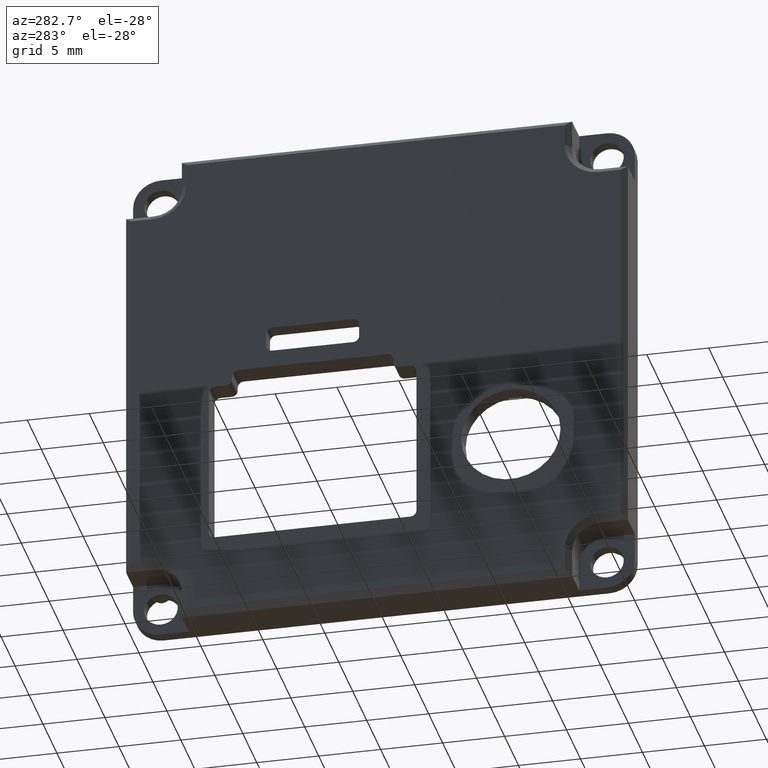
[diagram: clean part render]
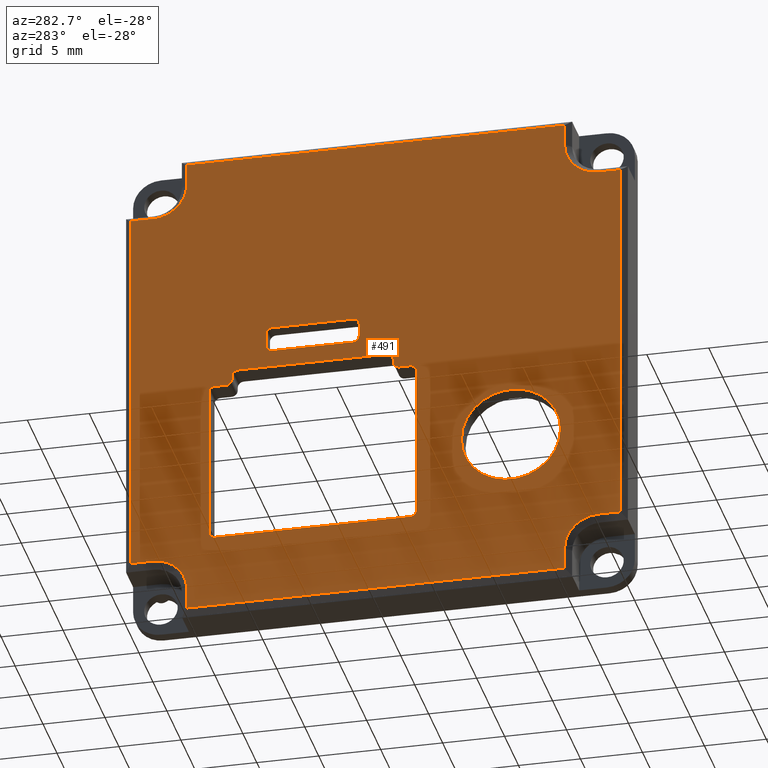
[diagram: same view with one face highlighted and labeled with its STEP entity id]
A machine part, auxiliary view. The second image highlights one B-rep face of the part: STEP entity #491.
In plain terms, the highlighted planar face has unit normal (-1, 0, 0).
Its self-contained STEP definition (entity closure, byte-faithful):
#491=ADVANCED_FACE('',(#1247,#1248,#1249,#869),#3597,.T.);
#869=FACE_OUTER_BOUND('',#1267,.F.);
#1247=FACE_BOUND('',#1264,.F.);
#1248=FACE_BOUND('',#1265,.F.);
#1249=FACE_BOUND('',#1266,.F.);
#1264=EDGE_LOOP('',(#1659,#1660));
#1265=EDGE_LOOP('',(#1661,#1662,#1663,#1664,#1665,#1666,#1667,#1668));
#1266=EDGE_LOOP('',(#1669,#1670,#1671,#1672,#1673,#1674,#1675,#1676,#1677,
#1678,#1679,#1680,#1681,#1682,#1683,#1684));
#1267=EDGE_LOOP('',(#1685,#1686,#1687,#1688,#1689,#1690,#1691,#1692,#1693,
#1694,#1695,#1696,#1697,#1698,#1699,#1700,#1701,#1702,#1703,#1704));
#1659=ORIENTED_EDGE('',*,*,#6031,.T.);
#1660=ORIENTED_EDGE('',*,*,#6030,.T.);
#1661=ORIENTED_EDGE('',*,*,#6081,.T.);
#1662=ORIENTED_EDGE('',*,*,#6082,.T.);
#1663=ORIENTED_EDGE('',*,*,#6083,.T.);
#1664=ORIENTED_EDGE('',*,*,#6084,.T.);
#1665=ORIENTED_EDGE('',*,*,#6085,.T.);
#1666=ORIENTED_EDGE('',*,*,#6086,.T.);
#1667=ORIENTED_EDGE('',*,*,#6087,.T.);
#1668=ORIENTED_EDGE('',*,*,#6080,.T.);
#1669=ORIENTED_EDGE('',*,*,#6050,.T.);
#1670=ORIENTED_EDGE('',*,*,#6051,.F.);
#1671=ORIENTED_EDGE('',*,*,#6052,.T.);
#1672=ORIENTED_EDGE('',*,*,#6053,.T.);
#1673=ORIENTED_EDGE('',*,*,#6054,.T.);
#1674=ORIENTED_EDGE('',*,*,#6055,.T.);
#1675=ORIENTED_EDGE('',*,*,#6056,.T.);
#1676=ORIENTED_EDGE('',*,*,#6057,.T.);
#1677=ORIENTED_EDGE('',*,*,#6058,.T.);
#1678=ORIENTED_EDGE('',*,*,#6059,.T.);
#1679=ORIENTED_EDGE('',*,*,#6060,.T.);
#1680=ORIENTED_EDGE('',*,*,#6061,.F.);
#1681=ORIENTED_EDGE('',*,*,#6062,.T.);
#1682=ORIENTED_EDGE('',*,*,#6063,.T.);
#1683=ORIENTED_EDGE('',*,*,#6048,.T.);
#1684=ORIENTED_EDGE('',*,*,#6049,.T.);
#1685=ORIENTED_EDGE('',*,*,#5962,.T.);
#1686=ORIENTED_EDGE('',*,*,#5964,.F.);
#1687=ORIENTED_EDGE('',*,*,#5965,.F.);
#1688=ORIENTED_EDGE('',*,*,#5967,.F.);
#1689=ORIENTED_EDGE('',*,*,#5969,.T.);
#1690=ORIENTED_EDGE('',*,*,#5968,.T.);
#1691=ORIENTED_EDGE('',*,*,#5970,.F.);
#1692=ORIENTED_EDGE('',*,*,#5971,.F.);
#1693=ORIENTED_EDGE('',*,*,#5973,.F.);
#1694=ORIENTED_EDGE('',*,*,#5975,.T.);
#1695=ORIENTED_EDGE('',*,*,#5974,.T.);
#1696=ORIENTED_EDGE('',*,*,#5976,.F.);
#1697=ORIENTED_EDGE('',*,*,#5977,.F.);
#1698=ORIENTED_EDGE('',*,*,#5979,.F.);
#1699=ORIENTED_EDGE('',*,*,#5981,.T.);
#1700=ORIENTED_EDGE('',*,*,#5980,.T.);
#1701=ORIENTED_EDGE('',*,*,#5982,.F.);
#1702=ORIENTED_EDGE('',*,*,#5983,.F.);
#1703=ORIENTED_EDGE('',*,*,#5985,.F.);
#1704=ORIENTED_EDGE('',*,*,#5963,.T.);
#3597=PLANE('',#9148);
#5628=CIRCLE('',#8870,2.75);
#5629=CIRCLE('',#8871,2.75);
#5630=CIRCLE('',#8872,2.75);
#5631=CIRCLE('',#8873,2.75);
#5632=CIRCLE('',#8874,2.75);
#5633=CIRCLE('',#8875,2.75);
#5634=CIRCLE('',#8876,2.75);
#5635=CIRCLE('',#8877,2.75);
#5644=CIRCLE('',#8886,4.);
#5645=CIRCLE('',#8887,4.);
#5654=CIRCLE('',#8896,0.5);
#5655=CIRCLE('',#8897,0.5);
#5656=CIRCLE('',#8898,0.5);
#5657=CIRCLE('',#8899,0.5);
#5658=CIRCLE('',#8900,0.5);
#5659=CIRCLE('',#8901,0.5);
#5660=CIRCLE('',#8902,0.5);
#5661=CIRCLE('',#8903,0.5);
#5670=CIRCLE('',#8912,0.5);
#5671=CIRCLE('',#8913,0.5);
#5672=CIRCLE('',#8914,0.5);
#5673=CIRCLE('',#8915,0.5);
#5962=EDGE_CURVE('',#8764,#8763,#5628,.T.);
#5963=EDGE_CURVE('',#8762,#8764,#5629,.T.);
#5964=EDGE_CURVE('',#8761,#8763,#6919,.T.);
#5965=EDGE_CURVE('',#8760,#8761,#6920,.T.);
#5967=EDGE_CURVE('',#8757,#8760,#6922,.T.);
#5968=EDGE_CURVE('',#8756,#8755,#5630,.T.);
#5969=EDGE_CURVE('',#8757,#8756,#5631,.T.);
#5970=EDGE_CURVE('',#8754,#8755,#6923,.T.);
#5971=EDGE_CURVE('',#8753,#8754,#6924,.T.);
#5973=EDGE_CURVE('',#8750,#8753,#6926,.T.);
#5974=EDGE_CURVE('',#8749,#8748,#5632,.T.);
#5975=EDGE_CURVE('',#8750,#8749,#5633,.T.);
#5976=EDGE_CURVE('',#8747,#8748,#6927,.T.);
#5977=EDGE_CURVE('',#8746,#8747,#6928,.T.);
#5979=EDGE_CURVE('',#8743,#8746,#6930,.T.);
#5980=EDGE_CURVE('',#8742,#8741,#5634,.T.);
#5981=EDGE_CURVE('',#8743,#8742,#5635,.T.);
#5982=EDGE_CURVE('',#8740,#8741,#6931,.T.);
#5983=EDGE_CURVE('',#8739,#8740,#6932,.T.);
#5985=EDGE_CURVE('',#8762,#8739,#6934,.T.);
#6030=EDGE_CURVE('',#8696,#8695,#5644,.T.);
#6031=EDGE_CURVE('',#8695,#8696,#5645,.T.);
#6048=EDGE_CURVE('',#8678,#8677,#6979,.T.);
#6049=EDGE_CURVE('',#8677,#8676,#5654,.T.);
#6050=EDGE_CURVE('',#8676,#8675,#6980,.T.);
#6051=EDGE_CURVE('',#8674,#8675,#5655,.T.);
#6052=EDGE_CURVE('',#8674,#8673,#6981,.T.);
#6053=EDGE_CURVE('',#8673,#8672,#5656,.T.);
#6054=EDGE_CURVE('',#8672,#8671,#6982,.T.);
#6055=EDGE_CURVE('',#8671,#8670,#5657,.T.);
#6056=EDGE_CURVE('',#8670,#8669,#6983,.T.);
#6057=EDGE_CURVE('',#8669,#8668,#5658,.T.);
#6058=EDGE_CURVE('',#8668,#8667,#6984,.T.);
#6059=EDGE_CURVE('',#8667,#8666,#5659,.T.);
#6060=EDGE_CURVE('',#8666,#8665,#6985,.T.);
#6061=EDGE_CURVE('',#8664,#8665,#5660,.T.);
#6062=EDGE_CURVE('',#8664,#8663,#6986,.T.);
#6063=EDGE_CURVE('',#8663,#8678,#5661,.T.);
#6080=EDGE_CURVE('',#8646,#8645,#5670,.T.);
#6081=EDGE_CURVE('',#8645,#8644,#6995,.T.);
#6082=EDGE_CURVE('',#8644,#8643,#5671,.T.);
#6083=EDGE_CURVE('',#8643,#8642,#6996,.T.);
#6084=EDGE_CURVE('',#8642,#8641,#5672,.T.);
#6085=EDGE_CURVE('',#8641,#8640,#6997,.T.);
#6086=EDGE_CURVE('',#8640,#8639,#5673,.T.);
#6087=EDGE_CURVE('',#8639,#8646,#6998,.T.);
#6919=LINE('',#12287,#7598);
#6920=LINE('',#12288,#7599);
#6922=LINE('',#12290,#7601);
#6923=LINE('',#12293,#7602);
#6924=LINE('',#12294,#7603);
#6926=LINE('',#12296,#7605);
#6927=LINE('',#12299,#7606);
#6928=LINE('',#12300,#7607);
#6930=LINE('',#12302,#7609);
#6931=LINE('',#12305,#7610);
#6932=LINE('',#12306,#7611);
#6934=LINE('',#12308,#7613);
#6979=LINE('',#12371,#7658);
#6980=LINE('',#12373,#7659);
#6981=LINE('',#12375,#7660);
#6982=LINE('',#12377,#7661);
#6983=LINE('',#12379,#7662);
#6984=LINE('',#12381,#7663);
#6985=LINE('',#12383,#7664);
#6986=LINE('',#12385,#7665);
#6995=LINE('',#12404,#7674);
#6996=LINE('',#12406,#7675);
#6997=LINE('',#12408,#7676);
#6998=LINE('',#12410,#7677);
#7598=VECTOR('',#9574,1.74999985754855);
#7599=VECTOR('',#9575,30.499999918845);
#7601=VECTOR('',#9577,1.75000001817986);
#7602=VECTOR('',#9582,1.74999636763292);
#7603=VECTOR('',#9583,30.4999962539143);
#7605=VECTOR('',#9585,1.74999998266961);
#7606=VECTOR('',#9590,1.75000006298982);
#7607=VECTOR('',#9591,30.5000001242829);
#7609=VECTOR('',#9593,1.75000001817964);
#7610=VECTOR('',#9598,1.74999636762564);
#7611=VECTOR('',#9599,30.4999962539125);
#7613=VECTOR('',#9601,1.74999998266912);
#7658=VECTOR('',#9682,12.0000000000169);
#7659=VECTOR('',#9685,0.249999999983743);
#7660=VECTOR('',#9688,0.874984506017285);
#7661=VECTOR('',#9691,12.4499999999826);
#7662=VECTOR('',#9694,15.7499690119951);
#7663=VECTOR('',#9697,12.4499999999827);
#7664=VECTOR('',#9700,0.874984505972094);
#7665=VECTOR('',#9703,0.250000000021373);
#7674=VECTOR('',#9732,1.05000000000462);
#7675=VECTOR('',#9735,6.49999999999149);
#7676=VECTOR('',#9738,1.04999999999404);
#7677=VECTOR('',#9741,6.50000000002041);
#8639=VERTEX_POINT('',#11929);
#8640=VERTEX_POINT('',#11930);
#8641=VERTEX_POINT('',#11931);
#8642=VERTEX_POINT('',#11932);
#8643=VERTEX_POINT('',#11933);
#8644=VERTEX_POINT('',#11934);
#8645=VERTEX_POINT('',#11935);
#8646=VERTEX_POINT('',#11936);
#8663=VERTEX_POINT('',#11953);
#8664=VERTEX_POINT('',#11954);
#8665=VERTEX_POINT('',#11955);
#8666=VERTEX_POINT('',#11956);
#8667=VERTEX_POINT('',#11957);
#8668=VERTEX_POINT('',#11958);
#8669=VERTEX_POINT('',#11959);
#8670=VERTEX_POINT('',#11960);
#8671=VERTEX_POINT('',#11961);
#8672=VERTEX_POINT('',#11962);
#8673=VERTEX_POINT('',#11963);
#8674=VERTEX_POINT('',#11964);
#8675=VERTEX_POINT('',#11965);
#8676=VERTEX_POINT('',#11966);
#8677=VERTEX_POINT('',#11967);
#8678=VERTEX_POINT('',#11968);
#8695=VERTEX_POINT('',#11985);
#8696=VERTEX_POINT('',#11986);
#8739=VERTEX_POINT('',#12029);
#8740=VERTEX_POINT('',#12030);
#8741=VERTEX_POINT('',#12031);
#8742=VERTEX_POINT('',#12032);
#8743=VERTEX_POINT('',#12033);
#8746=VERTEX_POINT('',#12036);
#8747=VERTEX_POINT('',#12037);
#8748=VERTEX_POINT('',#12038);
#8749=VERTEX_POINT('',#12039);
#8750=VERTEX_POINT('',#12040);
#8753=VERTEX_POINT('',#12043);
#8754=VERTEX_POINT('',#12044);
#8755=VERTEX_POINT('',#12045);
#8756=VERTEX_POINT('',#12046);
#8757=VERTEX_POINT('',#12047);
#8760=VERTEX_POINT('',#12050);
#8761=VERTEX_POINT('',#12051);
#8762=VERTEX_POINT('',#12052);
#8763=VERTEX_POINT('',#12053);
#8764=VERTEX_POINT('',#12054);
#8870=AXIS2_PLACEMENT_3D('',#12285,#9570,#9571);
#8871=AXIS2_PLACEMENT_3D('',#12286,#9572,#9573);
#8872=AXIS2_PLACEMENT_3D('',#12291,#9578,#9579);
#8873=AXIS2_PLACEMENT_3D('',#12292,#9580,#9581);
#8874=AXIS2_PLACEMENT_3D('',#12297,#9586,#9587);
#8875=AXIS2_PLACEMENT_3D('',#12298,#9588,#9589);
#8876=AXIS2_PLACEMENT_3D('',#12303,#9594,#9595);
#8877=AXIS2_PLACEMENT_3D('',#12304,#9596,#9597);
#8886=AXIS2_PLACEMENT_3D('',#12353,#9654,#9655);
#8887=AXIS2_PLACEMENT_3D('',#12354,#9656,#9657);
#8896=AXIS2_PLACEMENT_3D('',#12372,#9683,#9684);
#8897=AXIS2_PLACEMENT_3D('',#12374,#9686,#9687);
#8898=AXIS2_PLACEMENT_3D('',#12376,#9689,#9690);
#8899=AXIS2_PLACEMENT_3D('',#12378,#9692,#9693);
#8900=AXIS2_PLACEMENT_3D('',#12380,#9695,#9696);
#8901=AXIS2_PLACEMENT_3D('',#12382,#9698,#9699);
#8902=AXIS2_PLACEMENT_3D('',#12384,#9701,#9702);
#8903=AXIS2_PLACEMENT_3D('',#12386,#9704,#9705);
#8912=AXIS2_PLACEMENT_3D('',#12403,#9730,#9731);
#8913=AXIS2_PLACEMENT_3D('',#12405,#9733,#9734);
#8914=AXIS2_PLACEMENT_3D('',#12407,#9736,#9737);
#8915=AXIS2_PLACEMENT_3D('',#12409,#9739,#9740);
#9148=AXIS2_PLACEMENT_3D('',#13208,#10771,#10772);
#9570=DIRECTION('',(-1.,0.,0.));
#9571=DIRECTION('',(0.,0.574631814298951,-0.818412046585029));
#9572=DIRECTION('',(-1.,0.,0.));
#9573=DIRECTION('',(0.,1.,1.69496093927922E-09));
#9574=DIRECTION('',(0.,1.,-3.38049159062073E-09));
#9575=DIRECTION('',(0.,0.,1.));
#9577=DIRECTION('',(0.,-1.,3.38064252442274E-09));
#9578=DIRECTION('',(-1.,0.,0.));
#9579=DIRECTION('',(0.,0.818412043671064,0.574631818449128));
#9580=DIRECTION('',(-1.,0.,0.));
#9581=DIRECTION('',(0.,3.38546225396964E-09,1.));
#9582=DIRECTION('',(0.,-1.69035219497946E-09,1.));
#9583=DIRECTION('',(0.,-1.,0.));
#9585=DIRECTION('',(0.,1.6908217216138E-09,-1.));
#9586=DIRECTION('',(-1.,0.,0.));
#9587=DIRECTION('',(0.,-0.574631814298386,0.818412046585426));
#9588=DIRECTION('',(-1.,0.,0.));
#9589=DIRECTION('',(0.,-1.,-1.68933731649965E-09));
#9590=DIRECTION('',(0.,-1.,3.38195592681189E-09));
#9591=DIRECTION('',(0.,0.,-1.));
#9593=DIRECTION('',(0.,1.,-3.38175401626257E-09));
#9594=DIRECTION('',(-1.,0.,0.));
#9595=DIRECTION('',(0.,-0.818412043670597,-0.574631818449793));
#9596=DIRECTION('',(-1.,0.,0.));
#9597=DIRECTION('',(0.,-3.38388614099213E-09,-1.));
#9598=DIRECTION('',(0.,1.69091555503917E-09,-1.));
#9599=DIRECTION('',(0.,1.,0.));
#9601=DIRECTION('',(0.,-1.69054156476139E-09,1.));
#9654=DIRECTION('',(-1.,0.,0.));
#9655=DIRECTION('',(0.,1.,0.));
#9656=DIRECTION('',(-1.,0.,0.));
#9657=DIRECTION('',(0.,-1.,0.));
#9682=DIRECTION('',(0.,1.,0.));
#9683=DIRECTION('',(-1.,0.,0.));
#9684=DIRECTION('',(0.,0.,1.));
#9685=DIRECTION('',(0.,0.,-1.));
#9686=DIRECTION('',(-1.,0.,0.));
#9687=DIRECTION('',(0.,0.,-1.));
#9688=DIRECTION('',(0.,1.,0.));
#9689=DIRECTION('',(-1.,0.,0.));
#9690=DIRECTION('',(0.,0.,1.));
#9691=DIRECTION('',(0.,0.,-1.));
#9692=DIRECTION('',(-1.,0.,0.));
#9693=DIRECTION('',(0.,1.,0.));
#9694=DIRECTION('',(0.,-1.,0.));
#9695=DIRECTION('',(-1.,0.,0.));
#9696=DIRECTION('',(0.,0.,-1.));
#9697=DIRECTION('',(0.,0.,1.));
#9698=DIRECTION('',(-1.,0.,0.));
#9699=DIRECTION('',(0.,-1.,0.));
#9700=DIRECTION('',(0.,1.,0.));
#9701=DIRECTION('',(-1.,0.,0.));
#9702=DIRECTION('',(0.,1.,0.));
#9703=DIRECTION('',(0.,0.,1.));
#9704=DIRECTION('',(-1.,0.,0.));
#9705=DIRECTION('',(0.,-1.,0.));
#9730=DIRECTION('',(-1.,0.,0.));
#9731=DIRECTION('',(0.,0.,1.));
#9732=DIRECTION('',(0.,0.,-1.));
#9733=DIRECTION('',(-1.,0.,0.));
#9734=DIRECTION('',(0.,1.,0.));
#9735=DIRECTION('',(0.,-1.,0.));
#9736=DIRECTION('',(-1.,0.,0.));
#9737=DIRECTION('',(0.,0.,-1.));
#9738=DIRECTION('',(0.,0.,1.));
#9739=DIRECTION('',(-1.,0.,0.));
#9740=DIRECTION('',(0.,-1.,0.));
#9741=DIRECTION('',(0.,1.,0.));
#10771=DIRECTION('',(-1.,0.,0.));
#10772=DIRECTION('',(0.,1.,0.));
#11929=CARTESIAN_POINT('',(-4.,1.8299998785221,4.44462580383163));
#11930=CARTESIAN_POINT('',(-4.,1.32999987852709,3.94462580381491));
#11931=CARTESIAN_POINT('',(-4.,1.32999987852973,2.89462580382087));
#11932=CARTESIAN_POINT('',(-4.,1.8299998785221,2.39462580383163));
#11933=CARTESIAN_POINT('',(-4.,8.3299998785136,2.39462580383398));
#11934=CARTESIAN_POINT('',(-4.,8.8299998785229,2.89462580382754));
#11935=CARTESIAN_POINT('',(-4.,8.82999987852349,3.9446258038273));
#11936=CARTESIAN_POINT('',(-4.,8.32999987854251,4.44462580383242));
#11953=CARTESIAN_POINT('',(-4.,-1.42000012147619,0.494625803832832));
#11954=CARTESIAN_POINT('',(-4.,-1.42000012146599,0.24462580381127));
#11955=CARTESIAN_POINT('',(-4.,-1.92000012148134,-0.255374196183349));
#11956=CARTESIAN_POINT('',(-4.,-2.79498462745343,-0.255374196174026));
#11957=CARTESIAN_POINT('',(-4.,-3.29498462747221,-0.755374196184106));
#11958=CARTESIAN_POINT('',(-4.,-3.29498462747134,-13.2053741961668));
#11959=CARTESIAN_POINT('',(-4.,-2.79498462748254,-13.7053741961673));
#11960=CARTESIAN_POINT('',(-4.,12.9549843845125,-13.7053741961679));
#11961=CARTESIAN_POINT('',(-4.,13.4549843845292,-13.2053741961679));
#11962=CARTESIAN_POINT('',(-4.,13.454984384529,-0.755374196179568));
#11963=CARTESIAN_POINT('',(-4.,12.9549843845285,-0.255374196166303));
#11964=CARTESIAN_POINT('',(-4.,12.0799998785112,-0.255374196164216));
#11965=CARTESIAN_POINT('',(-4.,11.5799998785349,0.244625803859428));
#11966=CARTESIAN_POINT('',(-4.,11.5799998785407,0.494625803840442));
#11967=CARTESIAN_POINT('',(-4.,11.0799998785448,0.994625803834987));
#11968=CARTESIAN_POINT('',(-4.,-0.920000121465166,0.994625803833628));
#11985=CARTESIAN_POINT('',(-4.,-14.9219998377725,-7.30537417027289));
#11986=CARTESIAN_POINT('',(-4.,-6.92199983777246,-7.30537417027289));
#12029=CARTESIAN_POINT('',(-4.,-15.2499987846991,19.7499987994874));
#12030=CARTESIAN_POINT('',(-4.,15.2499999666012,19.7499963021001));
#12031=CARTESIAN_POINT('',(-4.,15.2499999695609,17.9999999344762));
#12032=CARTESIAN_POINT('',(-4.,15.7493668494666,16.4197624383864));
#12033=CARTESIAN_POINT('',(-4.,17.999999960255,15.2499999391237));
#12036=CARTESIAN_POINT('',(-4.,19.7500000198635,15.2499999746353));
#12037=CARTESIAN_POINT('',(-4.,19.7500001027215,-15.2500000667901));
#12038=CARTESIAN_POINT('',(-3.99999999999999,18.000000039731,-15.2500000608719));
#12039=CARTESIAN_POINT('',(-4.,16.4197625411137,-15.7493669327613));
#12040=CARTESIAN_POINT('',(-4.,15.2500000304346,-18.0000000655169));
#12043=CARTESIAN_POINT('',(-3.99999999999999,15.2499987847005,-19.7499987994927));
#12044=CARTESIAN_POINT('',(-3.99999999999999,-15.2499999666021,-19.7499963021055));
#12045=CARTESIAN_POINT('',(-4.,-15.2499999695613,-17.9999999344697));
#12046=CARTESIAN_POINT('',(-4.,-15.749366849466,-16.4197624383937));
#12047=CARTESIAN_POINT('',(-4.,-17.9999999602514,-15.2499999391278));
#12050=CARTESIAN_POINT('',(-4.,-19.7499999513797,-15.2499999061582));
#12051=CARTESIAN_POINT('',(-4.,-19.7499998972744,15.2500000667876));
#12052=CARTESIAN_POINT('',(-4.,-15.2500000304344,18.0000000655176));
#12053=CARTESIAN_POINT('',(-4.,-18.0000000397161,15.2500000608673));
#12054=CARTESIAN_POINT('',(-4.,-16.4197625411121,15.7493669327587));
#12285=CARTESIAN_POINT('',(-4.,-18.0000000304342,18.0000000608675));
#12286=CARTESIAN_POINT('',(-4.,-18.0000000304342,18.0000000608675));
#12287=CARTESIAN_POINT('',(-4.,-19.74999989727,15.2500000667831));
#12288=CARTESIAN_POINT('',(-4.,-19.7499998972767,-15.2499998520552));
#12290=CARTESIAN_POINT('',(-4.,-17.9999999602514,-15.2499999391258));
#12291=CARTESIAN_POINT('',(-3.99999999999999,-17.9999999695614,-17.9999999391288));
#12292=CARTESIAN_POINT('',(-3.99999999999999,-17.9999999695614,-17.9999999391288));
#12293=CARTESIAN_POINT('',(-3.99999999999999,-15.2499999666032,-19.7499963021065));
#12294=CARTESIAN_POINT('',(-3.99999999999999,15.2499962873127,-19.7499963021049));
#12296=CARTESIAN_POINT('',(-4.,15.2500000304354,-18.0000000655169));
#12297=CARTESIAN_POINT('',(-3.99999999999999,18.0000000304342,-18.0000000608712));
#12298=CARTESIAN_POINT('',(-3.99999999999999,18.0000000304342,-18.0000000608712));
#12299=CARTESIAN_POINT('',(-4.,19.7500001027221,-15.2500000667907));
#12300=CARTESIAN_POINT('',(-4.,19.7500001027213,15.2500000574931));
#12302=CARTESIAN_POINT('',(-4.,17.999999960255,15.2499999391246));
#12303=CARTESIAN_POINT('',(-4.,17.9999999695607,17.9999999391233));
#12304=CARTESIAN_POINT('',(-4.,17.9999999695607,17.9999999391233));
#12305=CARTESIAN_POINT('',(-4.,15.2499999666019,19.7499963021008));
#12306=CARTESIAN_POINT('',(-4.,-15.2499962873115,19.7499963020998));
#12308=CARTESIAN_POINT('',(-4.,-15.2500000304345,18.0000000655121));
#12353=CARTESIAN_POINT('',(-4.,-10.9219998377725,-7.30537417027289));
#12354=CARTESIAN_POINT('',(-4.,-10.9219998377725,-7.30537417027289));
#12371=CARTESIAN_POINT('',(-4.,-0.920000121476196,0.994625803833628));
#12372=CARTESIAN_POINT('',(-4.,11.0799998785407,0.494625803834987));
#12373=CARTESIAN_POINT('',(-4.,11.5799998785406,0.494625803843167));
#12374=CARTESIAN_POINT('',(-4.,12.0799998785195,0.244625803835101));
#12375=CARTESIAN_POINT('',(-4.,12.0799998785112,-0.255374196163871));
#12376=CARTESIAN_POINT('',(-4.,12.9549843845286,-0.75537419617047));
#12377=CARTESIAN_POINT('',(-4.,13.4549843845291,-0.755374196184122));
#12378=CARTESIAN_POINT('',(-4.,12.954984384529,-13.2053741961685));
#12379=CARTESIAN_POINT('',(-4.,12.9549843845125,-13.7053741961677));
#12380=CARTESIAN_POINT('',(-4.,-2.79498462747106,-13.2053741961669));
#12381=CARTESIAN_POINT('',(-4.,-3.29498462747149,-13.2053741961668));
#12382=CARTESIAN_POINT('',(-4.,-2.79498462747281,-0.755374196172737));
#12383=CARTESIAN_POINT('',(-4.,-2.79498462745343,-0.255374196174672));
#12384=CARTESIAN_POINT('',(-4.,-1.92000012146576,0.244625803810891));
#12385=CARTESIAN_POINT('',(-4.,-1.42000012146611,0.244625803811459));
#12386=CARTESIAN_POINT('',(-4.,-0.920000121476192,0.494625803833628));
#12403=CARTESIAN_POINT('',(-4.,8.32999987852844,3.94462580383094));
#12404=CARTESIAN_POINT('',(-4.,8.82999987852102,3.94462580382548));
#12405=CARTESIAN_POINT('',(-4.,8.32999987851912,2.89462580383087));
#12406=CARTESIAN_POINT('',(-4.,8.3299998785136,2.39462580383553));
#12407=CARTESIAN_POINT('',(-4.,1.82999987852782,2.89462580383167));
#12408=CARTESIAN_POINT('',(-4.,1.32999987853069,2.89462580382087));
#12409=CARTESIAN_POINT('',(-4.,1.8299998785246,3.94462580383163));
#12410=CARTESIAN_POINT('',(-4.,1.8299998785221,4.44462580383163));
#13208=CARTESIAN_POINT('',(-4.,-20.2527101206052,20.2527065252184));